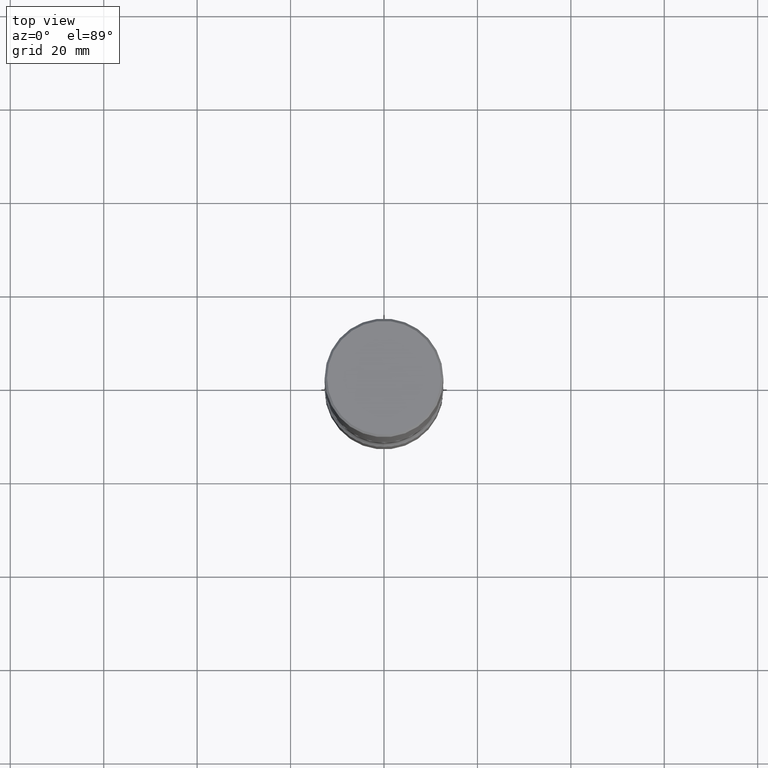
[diagram: clean part render]
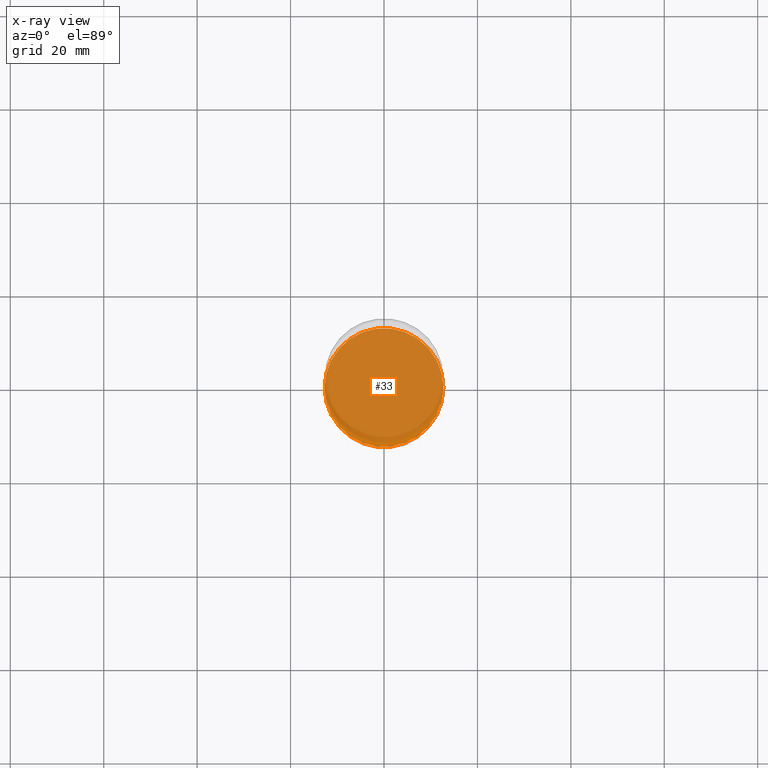
[diagram: x-ray — body ghosted, one internal face saturated and labeled with its STEP entity id]
A machine part, top view, then the same camera in x-ray: the body is ghosted and one INTERNAL B-rep face — a face not visible from any outside direction — is saturated and labeled: STEP entity #33.
In plain terms, the highlighted planar face has unit normal (0, -0, -1).
Its self-contained STEP definition (entity closure, byte-faithful):
#27 = CARTESIAN_POINT ( 'NONE',  ( 0.5000000000000002220, -2.007601769834807990E-14, -4.750000000000000888 ) ) ;
#33 = ADVANCED_FACE ( 'NONE', ( #35 ), #526, .F. ) ;
#35 = FACE_OUTER_BOUND ( 'NONE', #442, .T. ) ;
#39 = AXIS2_PLACEMENT_3D ( 'NONE', #127, #402, #433 ) ;
#55 = CARTESIAN_POINT ( 'NONE',  ( 1.161597682937940108E-28, -1.658453635950494339E-14, -4.750000000000000888 ) ) ;
#62 = ORIENTED_EDGE ( 'NONE', *, *, #351, .T. ) ;
#111 = VERTEX_POINT ( 'NONE', #27 ) ;
#113 = DIRECTION ( 'NONE',  ( 1.000000000000000000, -6.982962677686267499E-15, 0.000000000000000000 ) ) ;
#127 = CARTESIAN_POINT ( 'NONE',  ( 1.161597682937940108E-28, -1.658453635950494339E-14, -4.750000000000000888 ) ) ;
#135 = DIRECTION ( 'NONE',  ( -2.445468806185136597E-29, 3.491481338843145583E-15, 1.000000000000000000 ) ) ;
#148 = DIRECTION ( 'NONE',  ( -2.445468806185136597E-29, 3.491481338843145583E-15, 1.000000000000000000 ) ) ;
#155 = CARTESIAN_POINT ( 'NONE',  ( -0.5000000000000002220, -1.516162629739875886E-14, -4.750000000000000888 ) ) ;
#223 = CARTESIAN_POINT ( 'NONE',  ( 1.161597682937940108E-28, -1.658453635950494339E-14, -4.750000000000000888 ) ) ;
#346 = DIRECTION ( 'NONE',  ( 1.000000000000000000, -6.982962677686267499E-15, 0.000000000000000000 ) ) ;
#347 = CIRCLE ( 'NONE', #449, 0.5000000000000002220 ) ;
#351 = EDGE_CURVE ( 'NONE', #111, #441, #347, .T. ) ;
#354 = CIRCLE ( 'NONE', #383, 0.5000000000000002220 ) ;
#383 = AXIS2_PLACEMENT_3D ( 'NONE', #55, #148, #113 ) ;
#402 = DIRECTION ( 'NONE',  ( 2.438088387897960049E-29, -3.491481338843145188E-15, -1.000000000000000000 ) ) ;
#433 = DIRECTION ( 'NONE',  ( -1.000000000000000000, 6.982962677686265922E-15, -4.876176775795935793E-29 ) ) ;
#441 = VERTEX_POINT ( 'NONE', #155 ) ;
#442 = EDGE_LOOP ( 'NONE', ( #62, #519 ) ) ;
#449 = AXIS2_PLACEMENT_3D ( 'NONE', #223, #135, #346 ) ;
#452 = EDGE_CURVE ( 'NONE', #441, #111, #354, .T. ) ;
#519 = ORIENTED_EDGE ( 'NONE', *, *, #452, .T. ) ;
#526 = PLANE ( 'NONE',  #39 ) ;